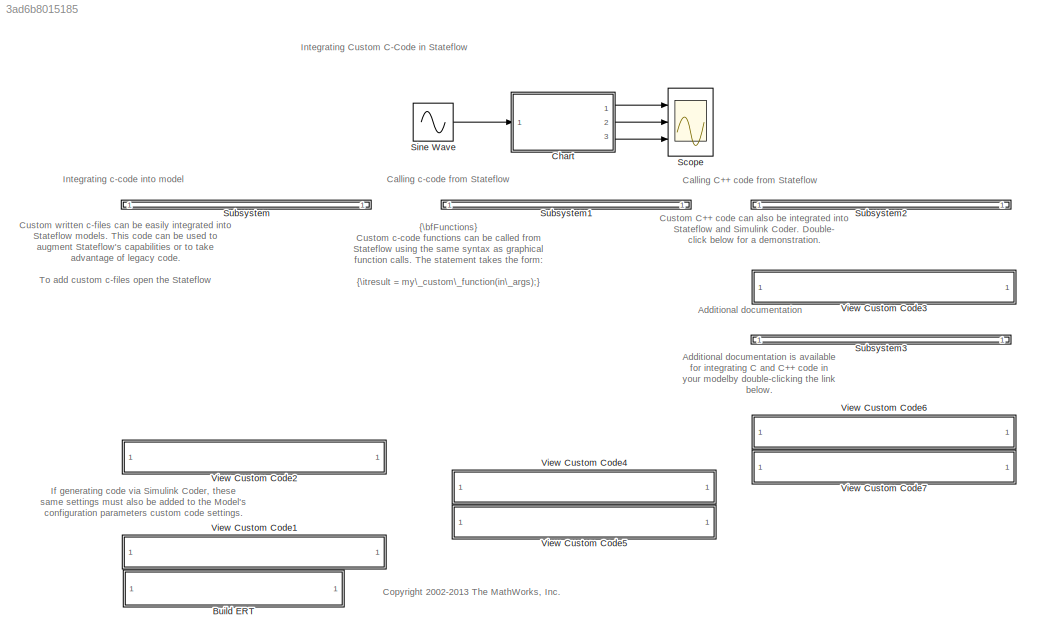
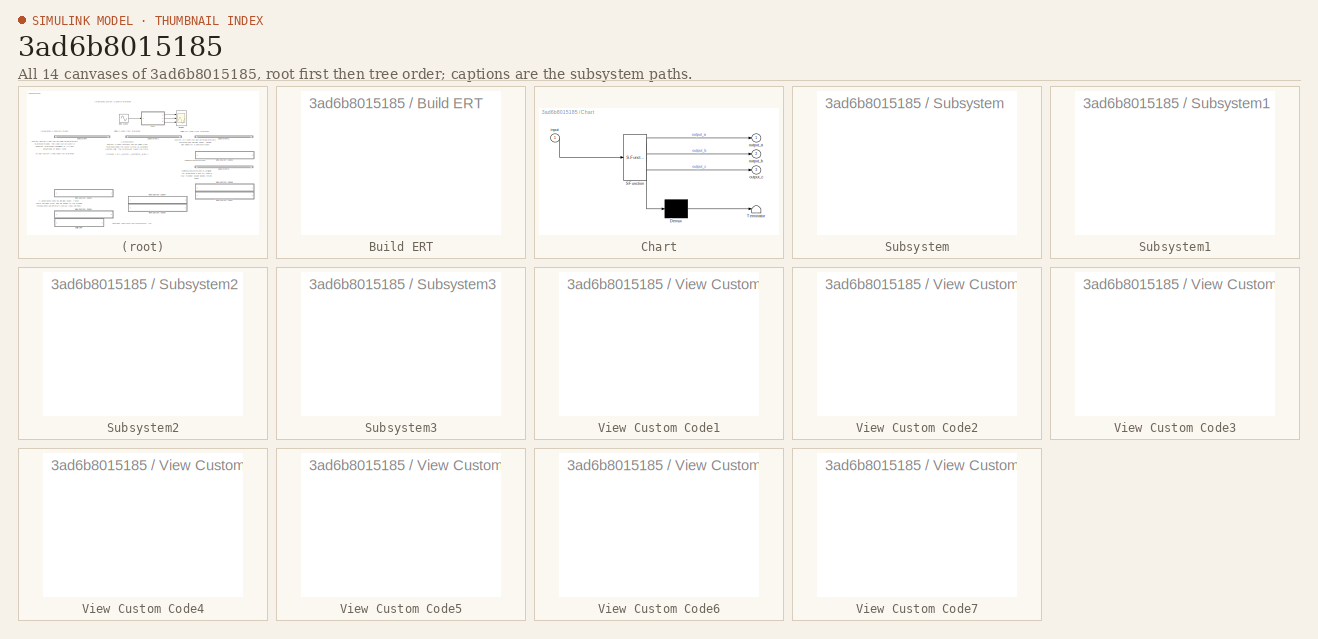
[diagram: thumbnail index - all 14 canvases of the model, root first then tree order]
MODEL slx_3ad6b8015185
KIND model
CONFIG AbsTol = auto
CONFIG EnableMultiTasking = on
CONFIG FixedStep = auto
CONFIG MaxStep = .1
CONFIG MinStep = auto
CONFIG RelTol = 1e-3
CONFIG SampleTimeConstraint = Unconstrained
CONFIG Solver = ode3
CONFIG SolverName = ode3
CONFIG StartTime = 0.0
CONFIG StopTime = 20
BLOCK [SubSystem] Build ERT
  OpenFcn = model=bdroot;            \nrtwbuilddemomodel(model);
  Ports = []
  RequestExecContextInheritance = off
  Variant = off
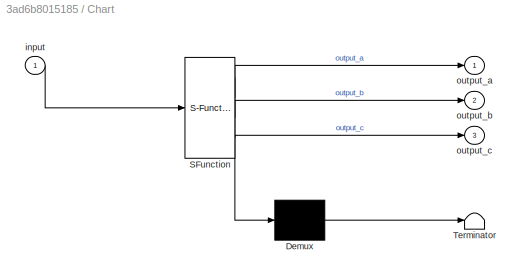
BLOCK [SubSystem] Chart
  ErrorFcn = Stateflow.Translate.translate
  PermitHierarchicalResolution = ExplicitOnly
  Ports = [1, 3]
  RequestExecContextInheritance = off
  SFBlockType = Chart
  TreatAsAtomicUnit = on
  Variant = off
BLOCK [Demux] Chart/ Demux 
  Outputs = 1
  Ports = [1, 1]
BLOCK [S-Function] Chart/ SFunction 
  EnableBusSupport = off
  FunctionName = sf_sfun
  PortCounts = [1 4]
  Ports = [1, 4]
  SFcnIsStateOwnerBlock = off
  SFunctionDeploymentMode = off
  Tag = Stateflow S-Function sf_custom 2
BLOCK [Terminator] Chart/ Terminator 
BLOCK [Inport] Chart/input
  IconDisplay = Port number
BLOCK [Outport] Chart/output_a
  IconDisplay = Port number
BLOCK [Outport] Chart/output_b
  IconDisplay = Port number
  Port = 2
BLOCK [Outport] Chart/output_c
  IconDisplay = Port number
  Port = 3
BLOCK [Scope] Scope
  NumInputPorts = 3
  Ports = [3]
  ScopeSpecificationString = Simulink.scopes.TimeScopeBlockCfg('CurrentConfiguration', extmgr.ConfigurationSet(extmgr.Configuration('Core','General UI',true),extmgr.Configuration('Core','Source UI',true),extmgr.Configuration('Sources','WiredSimulink',true,'DataLoggingSaveFormat','StructureWithTime','DataLoggingLimitDataPoints',true,'DataLoggingDecimation','1'),extmgr.Configuration('Visuals','Time Domain',true,'SerializedDispl...<+3108ch>
BLOCK [Sin] Sine Wave
  Ports = [0, 1]
  SampleTime = 0
BLOCK [SubSystem] Subsystem
  Ports = []
  RequestExecContextInheritance = off
  Variant = off
BLOCK [SubSystem] Subsystem1
  Ports = []
  RequestExecContextInheritance = off
  Variant = off
BLOCK [SubSystem] Subsystem2
  Ports = []
  RequestExecContextInheritance = off
  Variant = off
BLOCK [SubSystem] Subsystem3
  Ports = []
  RequestExecContextInheritance = off
  Variant = off
BLOCK [SubSystem] View Custom Code1
  OpenFcn = configset.showParameterGroup(bdroot,{'Real-Time Workshop/Custom Code'});
  Ports = []
  RequestExecContextInheritance = off
  Variant = off
BLOCK [SubSystem] View Custom Code2
  OpenFcn = configset.showParameterGroup(bdroot,{'Simulation Target'});
  Ports = []
  RequestExecContextInheritance = off
  Variant = off
BLOCK [SubSystem] View Custom Code3
  OpenFcn = sf_cpp
  Ports = []
  RequestExecContextInheritance = off
  Variant = off
BLOCK [SubSystem] View Custom Code4
  OpenFcn = eval('edit my_header.h')
  Ports = []
  RequestExecContextInheritance = off
  Variant = off
BLOCK [SubSystem] View Custom Code5
  OpenFcn = eval('edit my_function.c')
  Ports = []
  RequestExecContextInheritance = off
  Variant = off
BLOCK [SubSystem] View Custom Code6
  OpenFcn = helpview([docroot '/mapfiles/stateflow.map'], 'TARGET_OPTIONS_DIALOG')
  Ports = []
  RequestExecContextInheritance = off
  Variant = off
BLOCK [SubSystem] View Custom Code7
  OpenFcn = helpview([docroot '/mapfiles/stateflow.map'], 'including_custom_cpp_code')
  Ports = []
  RequestExecContextInheritance = off
  Variant = off
ANNOTATION (root): Additional documentation
ANNOTATION (root): Additional documentation is available for integrating C and C++ code in your modelby double-clicking the link below.
ANNOTATION (root): Calling C++ code from Stateflow
ANNOTATION (root): Calling c-code from Stateflow
ANNOTATION (root): <copyright redacted>
ANNOTATION (root): Custom C++ code can also be integrated into Stateflow and Simulink Coder. Double- click below for a demonstration.
ANNOTATION (root): Custom written c-files can be easily integrated into Stateflow models. This code can be used to augment Stateflow's capabilities or to take advantage of legacy code. To add custom c-files open the Stateflow simulation target and enter the following: {\bfInclude Code} - Header that defines functions, structures, and data to be accessible by Stateflow. {\bfInclude Path} - Path to this include file. ...<+87ch>
ANNOTATION (root): If generating code via Simulink Coder, these same settings must also be added to the Model's configuration parameters custom code settings.
ANNOTATION (root): Integrating Custom C-Code in Stateflow
ANNOTATION (root): Integrating c-code into model
ANNOTATION (root): {\bfFunctions} Custom c-code functions can be called from Stateflow using the same syntax as graphical function calls. The statement takes the form: {\itresult = my\_custom\_function(in\_args);} {\bfStructures} Variables of structure type can be accessed in Stateflow via the "dot" notation. The expression takes the form: {\itresult = my\_var.my\_field;} To view the custom source for this demonstra...<+34ch>
LINE Chart:1 -> Scope:1
LINE Chart:2 -> Scope:2
LINE Chart:3 -> Scope:3
LINE Sine Wave:1 -> Chart:1
CHART Chart states=5 transitions=2
  STATE_LABEL 'In this demo, a C-code function defined in my_function.c and a structure that is defined\nin my_header.h are included in the chart. MY_FUNCTION simply multiplies its input by\n2. The structure in my_header.h is defined as follows:\ntypedef struct {\n                real_T a;\n                int8_T b[10];\n}MyStruct;\nIn the model, we access the structure member using the dot notation:  MyStruct.a and\nal...<+272ch>'
  STATE_LABEL 'One'
  STATE_LABEL 'A\nduring:\ngMyStructVar.a = input;\noutput_a=gMyStructVar.a*3;\noutput_b = my_function(input);'
  STATE_LABEL 'A\nduring:\ngMyStructVar.a = input;\noutput_a=gMyStructVar.a*3;\noutput_b = my_function(input);'
  STATE_LABEL 'Two'
  STATE_LABEL 'B\nduring:\ngMyStructVar.b[1]=input+3;\ngMyStructPointerVar = &gMyStructVar;\noutput_c=gMyStructPointerVar->b[1];'
  STATE_LABEL 'B\nduring:\ngMyStructVar.b[1]=input+3;\ngMyStructPointerVar = &gMyStructVar;\noutput_c=gMyStructPointerVar->b[1];'
